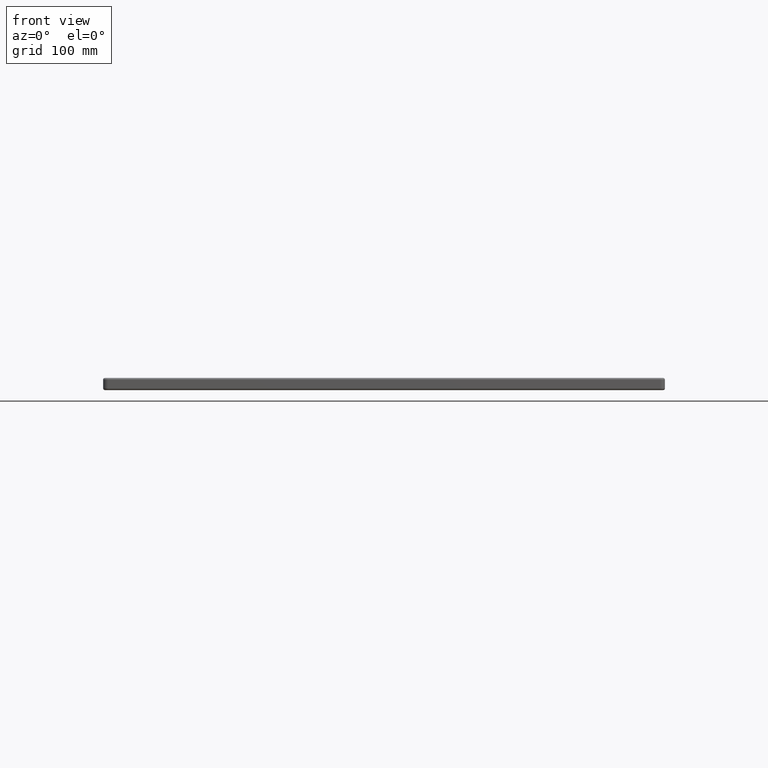
[diagram: clean part render]
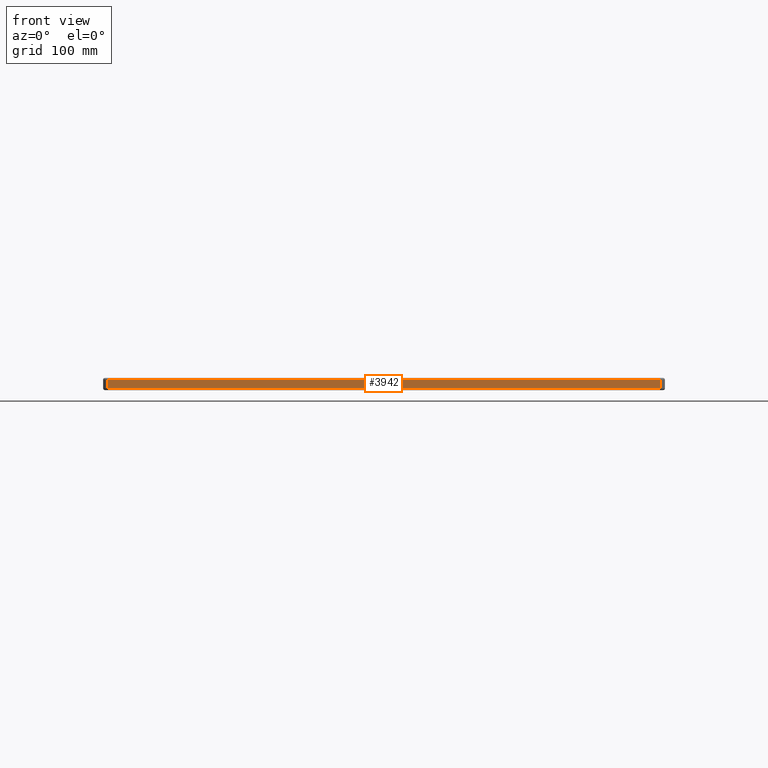
[diagram: same view with one face highlighted and labeled with its STEP entity id]
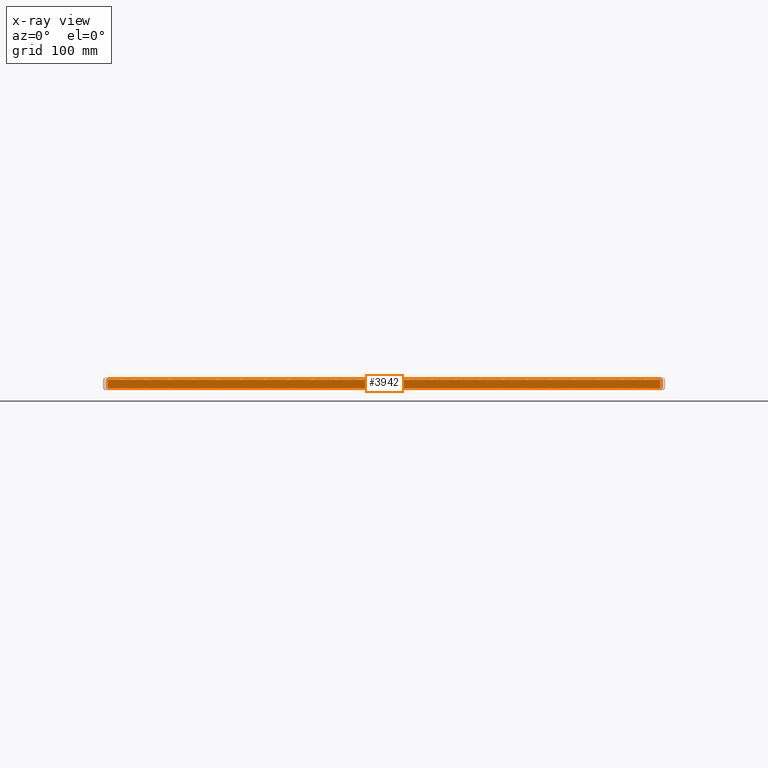
[diagram: x-ray of the same camera — body ghosted, the highlighted face saturated]
A machine part, front view. The second image highlights one B-rep face of the part: STEP entity #3942.
The next image is the same camera in x-ray: the body ghosted, the highlighted face saturated — about 0% of this face is hidden behind the body in this view.
In plain terms, the highlighted planar face has unit normal (0, -1, 0).
Its self-contained STEP definition (entity closure, byte-faithful):
#251 = DIRECTION ( 'NONE',  ( 0.0000000000000000000, -0.0000000000000000000, -1.000000000000000000 ) ) ;
#1835 = VECTOR ( 'NONE', #2015, 1000.000000000000000 ) ;
#1847 = CARTESIAN_POINT ( 'NONE',  ( 594.9999999999998900, 0.0000000000000000000, -11.00000000000000000 ) ) ;
#1875 = VERTEX_POINT ( 'NONE', #14448 ) ;
#2015 = DIRECTION ( 'NONE',  ( -1.000000000000000000, -0.0000000000000000000, 0.0000000000000000000 ) ) ;
#2294 = CARTESIAN_POINT ( 'NONE',  ( 4.999999999999999100, 0.0000000000000000000, -2.000000000000000000 ) ) ;
#2371 = VECTOR ( 'NONE', #31161, 1000.000000000000000 ) ;
#3942 = ADVANCED_FACE ( 'NONE', ( #10319 ), #7920, .T. ) ;
#4998 = CARTESIAN_POINT ( 'NONE',  ( 594.9999999999998900, 0.0000000000000000000, -13.00000000000000000 ) ) ;
#7270 = ORIENTED_EDGE ( 'NONE', *, *, #16058, .T. ) ;
#7920 = PLANE ( 'NONE',  #12150 ) ;
#7939 = EDGE_LOOP ( 'NONE', ( #25515, #11028, #28161, #7270 ) ) ;
#7985 = EDGE_CURVE ( 'NONE', #29200, #21757, #18375, .T. ) ;
#8265 = DIRECTION ( 'NONE',  ( 0.0000000000000000000, -1.000000000000000000, 0.0000000000000000000 ) ) ;
#9016 = CARTESIAN_POINT ( 'NONE',  ( 0.0000000000000000000, 0.0000000000000000000, -11.00000000000000000 ) ) ;
#10319 = FACE_OUTER_BOUND ( 'NONE', #7939, .T. ) ;
#11028 = ORIENTED_EDGE ( 'NONE', *, *, #7985, .T. ) ;
#12150 = AXIS2_PLACEMENT_3D ( 'NONE', #13316, #8265, #251 ) ;
#12222 = VECTOR ( 'NONE', #24824, 1000.000000000000000 ) ;
#13316 = CARTESIAN_POINT ( 'NONE',  ( 0.0000000000000000000, 0.0000000000000000000, -13.00000000000000000 ) ) ;
#14448 = CARTESIAN_POINT ( 'NONE',  ( 594.9999999999998900, 0.0000000000000000000, -2.000000000000000000 ) ) ;
#14609 = LINE ( 'NONE', #4998, #30995 ) ;
#16058 = EDGE_CURVE ( 'NONE', #1875, #21923, #21131, .T. ) ;
#18375 = LINE ( 'NONE', #9016, #12222 ) ;
#19304 = EDGE_CURVE ( 'NONE', #21757, #1875, #14609, .T. ) ;
#20011 = LINE ( 'NONE', #31611, #2371 ) ;
#21131 = LINE ( 'NONE', #25329, #1835 ) ;
#21757 = VERTEX_POINT ( 'NONE', #1847 ) ;
#21923 = VERTEX_POINT ( 'NONE', #2294 ) ;
#23364 = DIRECTION ( 'NONE',  ( -0.0000000000000000000, 0.0000000000000000000, 1.000000000000000000 ) ) ;
#24824 = DIRECTION ( 'NONE',  ( 1.000000000000000000, 0.0000000000000000000, 0.0000000000000000000 ) ) ;
#25329 = CARTESIAN_POINT ( 'NONE',  ( 4.999999999999999100, 0.0000000000000000000, -2.000000000000000000 ) ) ;
#25515 = ORIENTED_EDGE ( 'NONE', *, *, #28323, .T. ) ;
#28161 = ORIENTED_EDGE ( 'NONE', *, *, #19304, .T. ) ;
#28323 = EDGE_CURVE ( 'NONE', #21923, #29200, #20011, .T. ) ;
#29200 = VERTEX_POINT ( 'NONE', #29961 ) ;
#29961 = CARTESIAN_POINT ( 'NONE',  ( 4.999999999999999100, 0.0000000000000000000, -11.00000000000000000 ) ) ;
#30995 = VECTOR ( 'NONE', #23364, 1000.000000000000000 ) ;
#31161 = DIRECTION ( 'NONE',  ( -0.0000000000000000000, -0.0000000000000000000, -1.000000000000000000 ) ) ;
#31611 = CARTESIAN_POINT ( 'NONE',  ( 4.999999999999999100, 0.0000000000000000000, -13.00000000000000000 ) ) ;